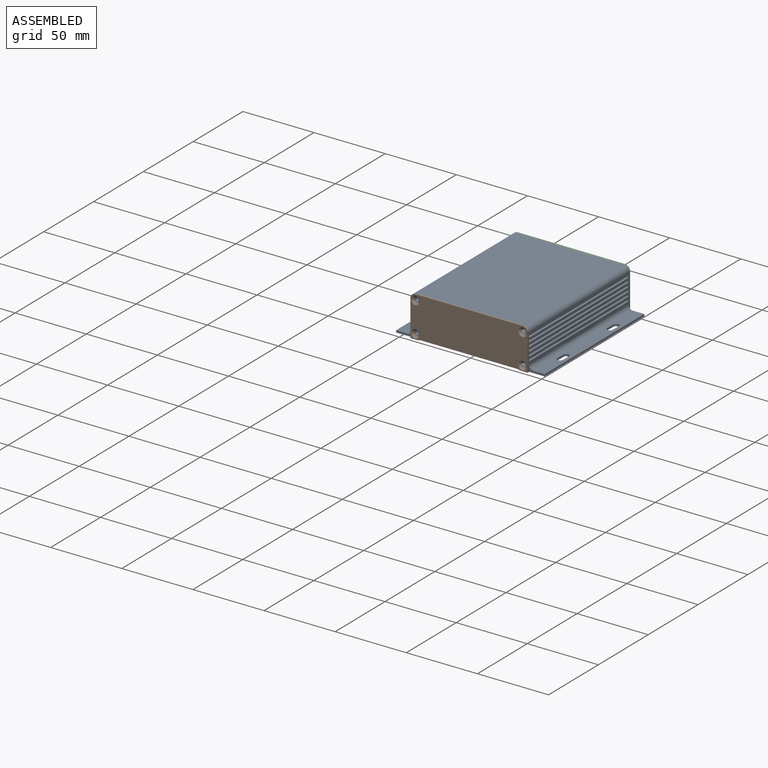
[diagram: assembled view]
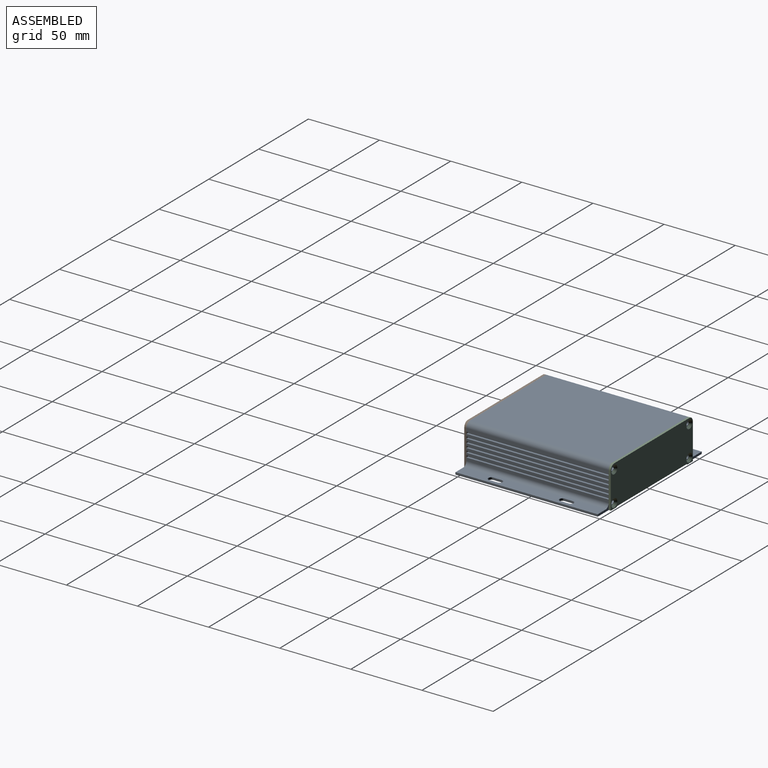
[diagram: assembled view, second angle]
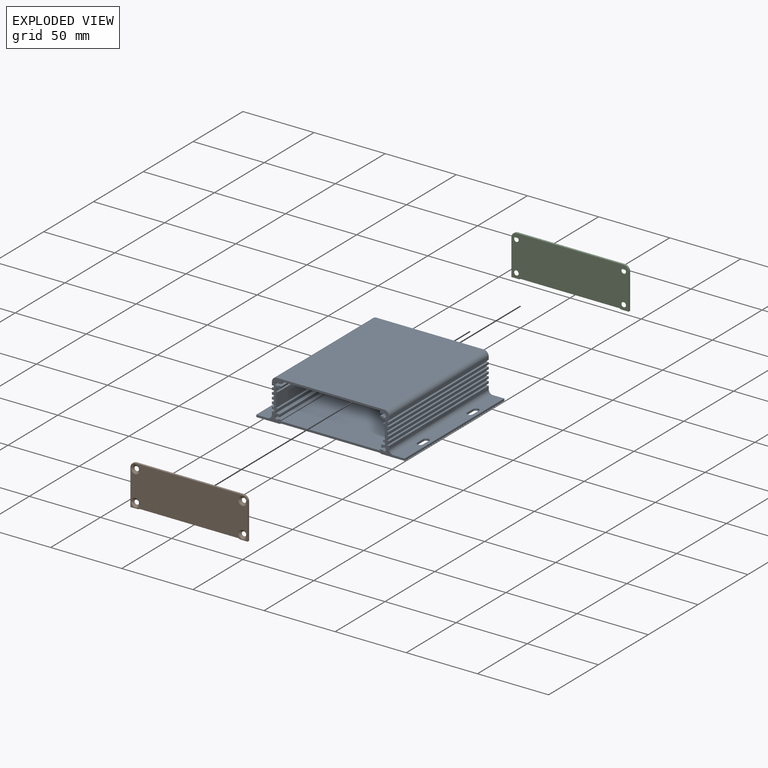
[diagram: exploded view]
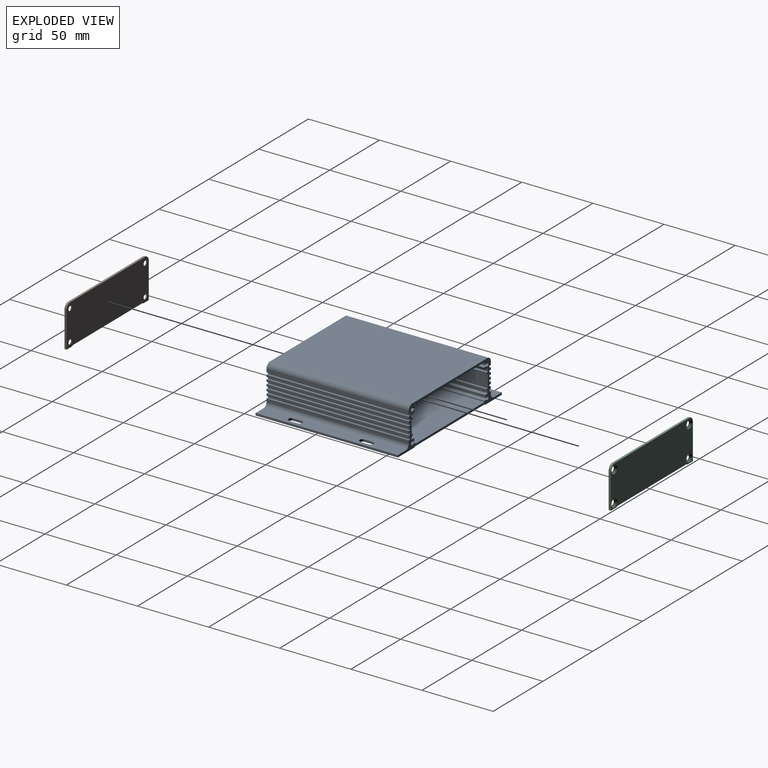
[diagram: exploded view, second angle]
ASSEMBLY  parts=3 mates=2
PART A: 166 faces, bbox 104.4x100x28.8 mm
  f0: cylinder r=0.2mm len=100mm, axis (0,1,0), area 31.4mm2, adj f1,f147,f148,f149
  f1: plane 100x69mm, normal (0,0,-1), area 6900mm2, adj f0,f2,f148,f149
  f2: cylinder r=0.2mm len=100mm, axis (0,1,0), area 31.4mm2, adj f1,f3,f148,f149
  f3: plane 100x1.45mm, normal (-1,0,0), area 145mm2, adj f2,f4,f148,f149
  f4: cylinder r=0.2mm len=100mm, axis (0,1,0), area 31.4mm2, adj f3,f5,f148,f149
  f5: plane 100x1.73mm, normal (0,0,-1), area 173.2mm2, adj f4,f6,f148,f149
  f6: cylinder r=1.25mm len=100mm, axis (0,1,0), area 648.7mm2, adj f5,f7,f148,f149
  f7: plane 100x1.43mm, normal (0,0,1), area 143.2mm2, adj f6,f8,f148,f149
  f8: cylinder r=0.5mm len=100mm, axis (0,1,0), area 78.5mm2, adj f7,f9,f148,f149
  f9: plane 100x0.02mm, normal (-1,0,0), area 2mm2, adj f8,f10,f148,f149
  f10: cylinder r=0.2mm len=100mm, axis (0,1,0), area 12.9mm2, adj f9,f11,f148,f149
  f11: plane 100x1.28mm, normal (-0.8,0,-0.6), area 160.3mm2, adj f10,f12,f148,f149
  f12: cylinder r=0.2mm len=100mm, axis (0,1,0), area 18.5mm2, adj f11,f13,f148,f149
  f13: plane 100x2.14mm, normal (0,0,-1), area 213.5mm2, adj f12,f14,f148,f149
  f14: cylinder r=0.2mm len=100mm, axis (0,1,0), area 31.4mm2, adj f13,f15,f148,f149
  f15: plane 100x1.8mm, normal (-1,0,0), area 180mm2, adj f14,f16,f148,f149
  f16: cylinder r=0.2mm len=100mm, axis (0,1,0), area 31.4mm2, adj f15,f17,f148,f149
  f17: plane 100x0.8mm, normal (0,0,1), area 80mm2, adj f16,f18,f148,f149
  f18: cylinder r=0.2mm len=100mm, axis (0,1,0), area 31.4mm2, adj f17,f19,f148,f149
  f19: plane 100x0.8mm, normal (-1,0,0), area 80mm2, adj f18,f20,f148,f149
  f20: cylinder r=0.2mm len=100mm, axis (0,1,0), area 31.4mm2, adj f19,f21,f148,f149
  f21: plane 100x0.8mm, normal (0,0,-1), area 80mm2, adj f20,f22,f148,f149
  f22: cylinder r=0.2mm len=100mm, axis (0,1,0), area 31.4mm2, adj f21,f23,f148,f149
  f23: plane 100x9mm, normal (-1,0,0), area 900mm2, adj f22,f24,f148,f149
  f24: cylinder r=0.2mm len=100mm, axis (0,1,0), area 31.4mm2, adj f23,f25,f148,f149
  f25: plane 100x0.9mm, normal (0,0,1), area 90mm2, adj f24,f26,f148,f149
  f26: cylinder r=0.1mm len=100mm, axis (0,1,0), area 15.7mm2, adj f25,f27,f148,f149
  f27: plane 100x0.9mm, normal (-1,0,0), area 90mm2, adj f26,f28,f148,f149
  f28: cylinder r=0.2mm len=100mm, axis (0,1,0), area 31.4mm2, adj f27,f29,f148,f149
  f29: plane 100x0.8mm, normal (0,0,-1), area 80mm2, adj f28,f30,f148,f149
  f30: cylinder r=0.2mm len=100mm, axis (0,1,0), area 31.4mm2, adj f29,f31,f148,f149
  f31: plane 100x1.6mm, normal (-1,0,0), area 160mm2, adj f30,f32,f148,f149
  f32: cylinder r=0.2mm len=100mm, axis (0,1,0), area 31.4mm2, adj f31,f33,f148,f149
  f33: plane 100x2.1mm, normal (0,0,1), area 210mm2, adj f32,f34,f148,f149
  f34: cylinder r=0.2mm len=100mm, axis (0,1,0), area 31.4mm2, adj f33,f35,f148,f149
  f35: plane 100x1.6mm, normal (-1,0,0), area 160mm2, adj f34,f36,f148,f149
  f36: cylinder r=0.2mm len=100mm, axis (0,1,0), area 31.4mm2, adj f35,f37,f148,f149
  f37: plane 100x0.73mm, normal (0,0,-1), area 73.2mm2, adj f36,f38,f148,f149
  f38: cylinder r=1.25mm len=100mm, axis (0,1,0), area 648.7mm2, adj f37,f39,f148,f149
  f39: plane 100x1.73mm, normal (0,0,1), area 173.2mm2, adj f38,f40,f148,f149
  f40: cylinder r=0.2mm len=100mm, axis (0,1,0), area 31.4mm2, adj f39,f41,f148,f149
  f41: plane 100x0.45mm, normal (-1,0,0), area 45mm2, adj f40,f42,f148,f149
  f42: cylinder r=0.2mm len=100mm, axis (0,1,0), area 31.4mm2, adj f41,f43,f148,f149
  f43: plane 100x69mm, normal (0,0,1), area 6900mm2, adj f42,f44,f148,f149
  f44: cylinder r=0.2mm len=100mm, axis (0,1,0), area 31.4mm2, adj f43,f45,f148,f149
  f45: plane 100x0.45mm, normal (1,0,0), area 45mm2, adj f44,f46,f148,f149
  f46: cylinder r=0.2mm len=100mm, axis (0,1,0), area 31.4mm2, adj f45,f47,f148,f149
  f47: plane 100x1.73mm, normal (0,0,1), area 173.2mm2, adj f46,f48,f148,f149
  f48: cylinder r=1.25mm len=100mm, axis (0,1,0), area 648.7mm2, adj f47,f49,f148,f149
  f49: plane 100x0.73mm, normal (0,0,-1), area 73.2mm2, adj f48,f50,f148,f149
  f50: cylinder r=0.2mm len=100mm, axis (0,1,0), area 31.4mm2, adj f49,f51,f148,f149
  f51: plane 100x1.6mm, normal (1,0,0), area 160mm2, adj f50,f52,f148,f149
  f52: cylinder r=0.2mm len=100mm, axis (0,1,0), area 31.4mm2, adj f51,f53,f148,f149
  f53: plane 100x2.1mm, normal (0,0,1), area 210mm2, adj f52,f54,f148,f149
  f54: cylinder r=0.2mm len=100mm, axis (0,1,0), area 31.4mm2, adj f53,f55,f148,f149
  f55: plane 100x1.6mm, normal (1,0,0), area 160mm2, adj f54,f56,f148,f149
  f56: cylinder r=0.2mm len=100mm, axis (0,1,0), area 31.4mm2, adj f55,f57,f148,f149
  f57: plane 100x0.8mm, normal (0,0,-1), area 80mm2, adj f56,f58,f148,f149
  f58: cylinder r=0.2mm len=100mm, axis (0,1,0), area 31.4mm2, adj f57,f59,f148,f149
  f59: plane 100x0.9mm, normal (1,0,0), area 90mm2, adj f58,f60,f148,f149
  f60: cylinder r=0.1mm len=100mm, axis (0,1,0), area 15.7mm2, adj f59,f61,f148,f149
  f61: plane 100x0.9mm, normal (0,0,1), area 90mm2, adj f60,f62,f148,f149
  f62: cylinder r=0.2mm len=100mm, axis (0,1,0), area 31.4mm2, adj f61,f63,f148,f149
  f63: plane 100x9mm, normal (1,0,0), area 900mm2, adj f62,f64,f148,f149
  f64: cylinder r=0.2mm len=100mm, axis (0,1,0), area 31.4mm2, adj f63,f65,f148,f149
  f65: plane 100x0.8mm, normal (0,0,-1), area 80mm2, adj f64,f66,f148,f149
  f66: cylinder r=0.2mm len=100mm, axis (0,1,0), area 31.4mm2, adj f65,f67,f148,f149
  f67: plane 100x0.8mm, normal (1,0,0), area 80mm2, adj f66,f68,f148,f149
  f68: cylinder r=0.2mm len=100mm, axis (0,1,0), area 31.4mm2, adj f67,f69,f148,f149
  f69: plane 100x0.8mm, normal (0,0,1), area 80mm2, adj f68,f70,f148,f149
  f70: cylinder r=0.2mm len=100mm, axis (0,1,0), area 31.4mm2, adj f69,f71,f148,f149
  f71: plane 100x1.8mm, normal (1,0,0), area 180mm2, adj f70,f72,f148,f149
  f72: cylinder r=0.2mm len=100mm, axis (0,1,0), area 31.4mm2, adj f71,f73,f148,f149
  f73: plane 100x2.14mm, normal (0,0,-1), area 213.5mm2, adj f72,f74,f148,f149
  f74: cylinder r=0.2mm len=100mm, axis (0,1,0), area 18.5mm2, adj f73,f75,f148,f149
  f75: plane 100x1.28mm, normal (0.8,0,-0.6), area 160.3mm2, adj f74,f76,f148,f149
  f76: cylinder r=0.2mm len=100mm, axis (0,1,0), area 12.9mm2, adj f75,f77,f148,f149
  f77: plane 100x0.02mm, normal (1,0,0), area 2mm2, adj f76,f78,f148,f149
  f78: cylinder r=0.5mm len=100mm, axis (0,1,0), area 78.5mm2, adj f77,f79,f148,f149
  f79: plane 100x1.43mm, normal (0,0,1), area 143.2mm2, adj f78,f80,f148,f149
  f80: cylinder r=1.25mm len=100mm, axis (0,1,0), area 648.7mm2, adj f79,f81,f148,f149
  f81: plane 100x1.73mm, normal (0,0,-1), area 173.2mm2, adj f80,f82,f148,f149
  f82: cylinder r=0.2mm len=100mm, axis (0,1,0), area 31.4mm2, adj f81,f147,f148,f149
  f83: cylinder r=3.5mm len=100mm, axis (0,1,0), area 549.8mm2, adj f84,f146,f148,f149
  f84: plane 100x75.4mm, normal (0,0,1), area 7540mm2, adj f83,f85,f148,f149
  f85: cylinder r=3.5mm len=100mm, axis (0,1,0), area 549.8mm2, adj f84,f86,f148,f149
  f86: plane 100x2.15mm, normal (-1,0,0), area 215mm2, adj f85,f87,f148,f149
  f87: plane 100x1.5mm, normal (0,0,-1), area 150mm2, adj f86,f88,f148,f149
  f88: plane 100x1.5mm, normal (-1,0,0), area 150mm2, adj f87,f89,f148,f149
  f89: plane 100x1.5mm, normal (0,0,1), area 150mm2, adj f88,f90,f148,f149
  f90: plane 100x1.5mm, normal (-1,0,0), area 150mm2, adj f89,f91,f148,f149
  f91: plane 100x1.5mm, normal (0,0,-1), area 150mm2, adj f90,f92,f148,f149
  f92: plane 100x1.5mm, normal (-1,0,0), area 150mm2, adj f91,f93,f148,f149
  f93: plane 100x1.5mm, normal (0,0,1), area 150mm2, adj f92,f94,f148,f149
  f94: plane 100x1.5mm, normal (-1,0,0), area 150mm2, adj f93,f95,f148,f149
  f95: plane 100x1.5mm, normal (0,0,-1), area 150mm2, adj f94,f96,f148,f149
  f96: plane 100x1.5mm, normal (-1,0,0), area 150mm2, adj f95,f97,f148,f149
  f97: plane 100x1.5mm, normal (0,0,1), area 150mm2, adj f96,f98,f148,f149
  f98: plane 100x1.5mm, normal (-1,0,0), area 150mm2, adj f97,f99,f148,f149
  f99: plane 100x1.5mm, normal (0,0,-1), area 150mm2, adj f98,f100,f148,f149
  f100: plane 100x1.5mm, normal (-1,0,0), area 150mm2, adj f99,f101,f148,f149
  f101: plane 100x1.5mm, normal (0,0,1), area 150mm2, adj f100,f102,f148,f149
  f102: plane 100x1.5mm, normal (-1,0,0), area 150mm2, adj f101,f103,f148,f149
  f103: plane 100x1.5mm, normal (0,0,-1), area 150mm2, adj f102,f104,f148,f149
  f104: plane 100x1.5mm, normal (-1,0,0), area 150mm2, adj f103,f105,f148,f149
  f105: plane 100x1.5mm, normal (0,0,1), area 150mm2, adj f104,f106,f148,f149
  f106: plane 100x1.5mm, normal (-1,0,0), area 150mm2, adj f105,f107,f148,f149
  f107: plane 100x1.5mm, normal (0,0,-1), area 150mm2, adj f106,f108,f148,f149
  f108: plane 100x1.5mm, normal (-1,0,0), area 150mm2, adj f107,f109,f148,f149
  f109: plane 100x1.5mm, normal (0,0,1), area 150mm2, adj f108,f110,f148,f149
  f110: plane 100x2.15mm, normal (-1,0,0), area 215mm2, adj f109,f111,f148,f149
  f111: cylinder r=3mm len=100mm, axis (0,1,0), area 471.2mm2, adj f110,f112,f148,f149
  f112: plane 100x8mm, normal (0,0,1), area 726.9mm2, adj f111,f113,f148,f149,f158,f159,f160,f161
  f113: plane 100x1.5mm, normal (-1,0,0), area 150mm2, adj f112,f114,f148,f149
  f114: plane 100x16.42mm, normal (0,0,-1), area 1568.5mm2, adj f113,f115,f148,f149,f158,f159,f160,f161
  f115: plane 100x1.08mm, normal (0.42,0,-0.91), area 119.4mm2, adj f114,f116,f148,f149
  f116: plane 100x69.4mm, normal (0,0,-1), area 6940mm2, adj f115,f117,f148,f149
  f117: plane 100x1.08mm, normal (-0.42,0,-0.91), area 119.4mm2, adj f116,f118,f148,f149
  f118: plane 100x16.42mm, normal (0,0,-1), area 1568.5mm2, adj f117,f119,f148,f149,f150,f151,f152,f153
  f119: plane 100x1.5mm, normal (1,0,0), area 150mm2, adj f118,f120,f148,f149
  f120: plane 100x8mm, normal (0,0,1), area 726.9mm2, adj f119,f121,f148,f149,f150,f151,f152,f153
  f121: cylinder r=3mm len=100mm, axis (0,1,0), area 471.2mm2, adj f120,f122,f148,f149
  f122: plane 100x2.15mm, normal (1,0,0), area 215mm2, adj f121,f123,f148,f149
  f123: plane 100x1.5mm, normal (0,0,1), area 150mm2, adj f122,f124,f148,f149
  f124: plane 100x1.5mm, normal (1,0,0), area 150mm2, adj f123,f125,f148,f149
  f125: plane 100x1.5mm, normal (0,0,-1), area 150mm2, adj f124,f126,f148,f149
  f126: plane 100x1.5mm, normal (1,0,0), area 150mm2, adj f125,f127,f148,f149
  f127: plane 100x1.5mm, normal (0,0,1), area 150mm2, adj f126,f128,f148,f149
  f128: plane 100x1.5mm, normal (1,0,0), area 150mm2, adj f127,f129,f148,f149
  f129: plane 100x1.5mm, normal (0,0,-1), area 150mm2, adj f128,f130,f148,f149
  f130: plane 100x1.5mm, normal (1,0,0), area 150mm2, adj f129,f131,f148,f149
  f131: plane 100x1.5mm, normal (0,0,1), area 150mm2, adj f130,f132,f148,f149
  f132: plane 100x1.5mm, normal (1,0,0), area 150mm2, adj f131,f133,f148,f149
  f133: plane 100x1.5mm, normal (0,0,-1), area 150mm2, adj f132,f134,f148,f149
  f134: plane 100x1.5mm, normal (1,0,0), area 150mm2, adj f133,f135,f148,f149
  f135: plane 100x1.5mm, normal (0,0,1), area 150mm2, adj f134,f136,f148,f149
  f136: plane 100x1.5mm, normal (1,0,0), area 150mm2, adj f135,f137,f148,f149
  f137: plane 100x1.5mm, normal (0,0,-1), area 150mm2, adj f136,f138,f148,f149
  f138: plane 100x1.5mm, normal (1,0,0), area 150mm2, adj f137,f139,f148,f149
  f139: plane 100x1.5mm, normal (0,0,1), area 150mm2, adj f138,f140,f148,f149
  f140: plane 100x1.5mm, normal (1,0,0), area 150mm2, adj f139,f141,f148,f149
  f141: plane 100x1.5mm, normal (0,0,-1), area 150mm2, adj f140,f142,f148,f149
  f142: plane 100x1.5mm, normal (1,0,0), area 150mm2, adj f141,f143,f148,f149
  f143: plane 100x1.5mm, normal (0,0,1), area 150mm2, adj f142,f144,f148,f149
  f144: plane 100x1.5mm, normal (1,0,0), area 150mm2, adj f143,f145,f148,f149
  f145: plane 100x1.5mm, normal (0,0,-1), area 150mm2, adj f144,f146,f148,f149
  f146: plane 100x2.15mm, normal (1,0,0), area 215mm2, adj f83,f145,f148,f149
  f147: plane 100x1.45mm, normal (1,0,0), area 145mm2, adj f0,f82,f148,f149
  f148: plane 104.4x28.8mm, normal (0,-1,0), area 445.8mm2, adj f0,f1,f2,f3,f4,f5,f6,f7
  f149: plane 104.4x28.8mm, normal (0,1,0), area 445.8mm2, adj f0,f1,f2,f3,f4,f5,f6,f7
  f150: plane 6x1.5mm, normal (1,0,0), area 9mm2, adj f118,f120,f151,f153
  f151: cylinder r=2mm len=4mm, axis (0,0,1), area 9.4mm2, adj f118,f120,f150,f152
  f152: plane 6x1.5mm, normal (-1,0,0), area 9mm2, adj f118,f120,f151,f153
  f153: cylinder r=2mm len=4mm, axis (0,0,1), area 9.4mm2, adj f118,f120,f150,f152
  f154: cylinder r=2mm len=4mm, axis (0,0,1), area 9.4mm2, adj f118,f120,f155,f157
  f155: plane 6x1.5mm, normal (1,0,0), area 9mm2, adj f118,f120,f154,f156
  f156: cylinder r=2mm len=4mm, axis (0,0,1), area 9.4mm2, adj f118,f120,f155,f157
  f157: plane 6x1.5mm, normal (-1,0,0), area 9mm2, adj f118,f120,f154,f156
  f158: plane 6x1.5mm, normal (-1,0,0), area 9mm2, adj f112,f114,f159,f161
  f159: cylinder r=2mm len=4mm, axis (0,0,1), area 9.4mm2, adj f112,f114,f158,f160
  f160: plane 6x1.5mm, normal (1,0,0), area 9mm2, adj f112,f114,f159,f161
  f161: cylinder r=2mm len=4mm, axis (0,0,1), area 9.4mm2, adj f112,f114,f158,f160
  f162: cylinder r=2mm len=4mm, axis (0,0,1), area 9.4mm2, adj f112,f114,f163,f165
  f163: plane 6x1.5mm, normal (-1,0,0), area 9mm2, adj f112,f114,f162,f164
  f164: cylinder r=2mm len=4mm, axis (0,0,1), area 9.4mm2, adj f112,f114,f163,f165
  f165: plane 6x1.5mm, normal (1,0,0), area 9mm2, adj f112,f114,f162,f164
PART B: 20 faces, bbox 82.4x1.5x28.8 mm
  f0: plane 25.3x1.5mm, normal (-1,0,0), area 37.9mm2, adj f1,f9,f10,f11
  f1: plane 5.42x1.5mm, normal (0,0,-1), area 8.1mm2, adj f0,f2,f10,f11
  f2: plane 1.5x1.08mm, normal (0.42,0,-0.91), area 1.8mm2, adj f1,f3,f10,f11
  f3: plane 69.4x1.5mm, normal (0,0,-1), area 104.1mm2, adj f2,f4,f10,f11
  f4: plane 1.5x1.08mm, normal (-0.42,0,-0.91), area 1.8mm2, adj f3,f5,f10,f11
  f5: plane 5.42x1.5mm, normal (0,0,-1), area 8.1mm2, adj f4,f6,f10,f11
  f6: plane 25.3x1.5mm, normal (1,0,0), area 37.9mm2, adj f5,f7,f10,f11
  f7: cylinder r=3.5mm len=3.5mm, axis (0,1,0), area 8.2mm2, adj f6,f8,f10,f11
  f8: plane 75.4x1.5mm, normal (0,0,1), area 113.1mm2, adj f7,f9,f10,f11
  f9: cylinder r=3.5mm len=3.5mm, axis (0,1,0), area 8.2mm2, adj f0,f8,f10,f11
  f10: plane 82.4x28.8mm, normal (0,-1,0), area 2219.5mm2, adj f0,f1,f2,f3,f4,f5,f6,f7
  f11: plane 82.4x28.8mm, normal (0,1,0), area 2300.5mm2, adj f0,f1,f2,f3,f4,f5,f6,f7
  f12: cylinder r=1.6mm len=3.2mm, axis (0,-1,0), area 1mm2, adj f11,f13
  f13: cone r=1.6mm half-angle=45deg, axis (0,-1,0), area 28.6mm2, adj f10,f12
  f14: cylinder r=1.6mm len=3.2mm, axis (0,-1,0), area 1mm2, adj f11,f15
  f15: cone r=1.6mm half-angle=45deg, axis (0,-1,0), area 28.6mm2, adj f10,f14
  f16: cylinder r=1.6mm len=3.2mm, axis (0,-1,0), area 1mm2, adj f11,f17
  f17: cone r=1.6mm half-angle=45deg, axis (0,-1,0), area 28.6mm2, adj f10,f16
  f18: cylinder r=1.6mm len=3.2mm, axis (0,-1,0), area 1mm2, adj f11,f19
  f19: cone r=1.6mm half-angle=45deg, axis (0,-1,0), area 28.6mm2, adj f10,f18
PART C: 20 faces, bbox 82.4x1.5x28.8 mm
  f0: plane 25.3x1.5mm, normal (-1,0,0), area 37.9mm2, adj f1,f9,f10,f11
  f1: plane 5.42x1.5mm, normal (0,0,-1), area 8.1mm2, adj f0,f2,f10,f11
  f2: plane 1.5x1.08mm, normal (0.42,0,-0.91), area 1.8mm2, adj f1,f3,f10,f11
  f3: plane 69.4x1.5mm, normal (0,0,-1), area 104.1mm2, adj f2,f4,f10,f11
  f4: plane 1.5x1.08mm, normal (-0.42,0,-0.91), area 1.8mm2, adj f3,f5,f10,f11
  f5: plane 5.42x1.5mm, normal (0,0,-1), area 8.1mm2, adj f4,f6,f10,f11
  f6: plane 25.3x1.5mm, normal (1,0,0), area 37.9mm2, adj f5,f7,f10,f11
  f7: cylinder r=3.5mm len=3.5mm, axis (0,-1,0), area 8.2mm2, adj f6,f8,f10,f11
  f8: plane 75.4x1.5mm, normal (0,0,1), area 113.1mm2, adj f7,f9,f10,f11
  f9: cylinder r=3.5mm len=3.5mm, axis (0,-1,0), area 8.2mm2, adj f0,f8,f10,f11
  f10: plane 82.4x28.8mm, normal (0,1,0), area 2219.5mm2, adj f0,f1,f2,f3,f4,f5,f6,f7
  f11: plane 82.4x28.8mm, normal (0,-1,0), area 2300.5mm2, adj f0,f1,f2,f3,f4,f5,f6,f7
  f12: cylinder r=1.6mm len=3.2mm, axis (0,1,0), area 1mm2, adj f11,f13
  f13: cone r=1.6mm half-angle=45deg, axis (0,1,0), area 28.6mm2, adj f10,f12
  f14: cylinder r=1.6mm len=3.2mm, axis (0,1,0), area 1mm2, adj f11,f15
  f15: cone r=1.6mm half-angle=45deg, axis (0,1,0), area 28.6mm2, adj f10,f14
  f16: cylinder r=1.6mm len=3.2mm, axis (0,1,0), area 1mm2, adj f11,f17
  f17: cone r=1.6mm half-angle=45deg, axis (0,1,0), area 28.6mm2, adj f10,f16
  f18: cylinder r=1.6mm len=3.2mm, axis (0,1,0), area 1mm2, adj f11,f19
  f19: cone r=1.6mm half-angle=45deg, axis (0,1,0), area 28.6mm2, adj f10,f18
PLACE A at identity fixed
PLACE B at identity
PLACE C at identity
MATE fastened A.f6 <-> B.f18  axis (0,-1,0) through (37.7,-50,24.8)mm
MATE fastened C.f18 <-> A.f6  axis (0,-1,0) through (37.7,50,24.8)mm
